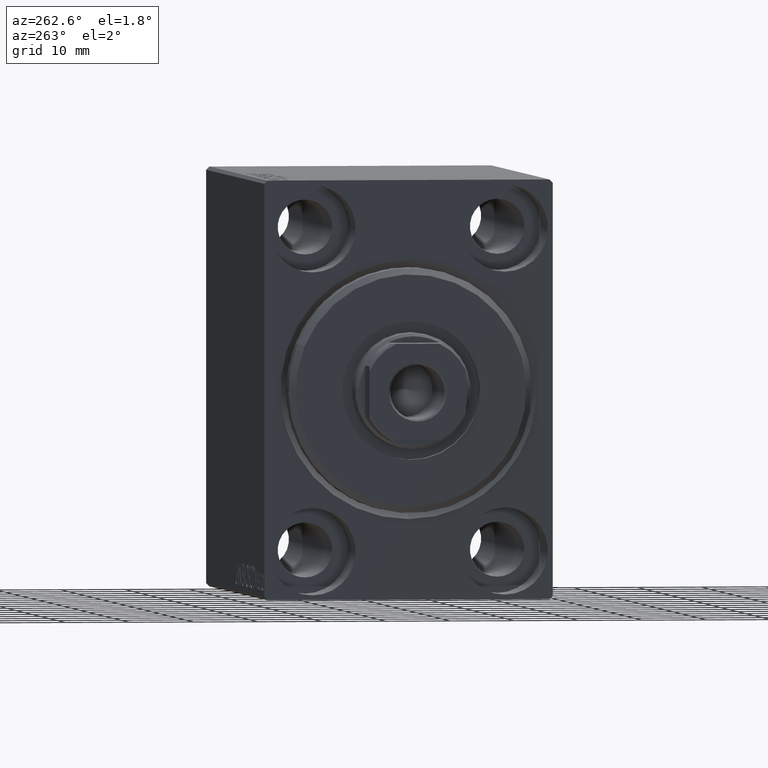
[diagram: clean part render]
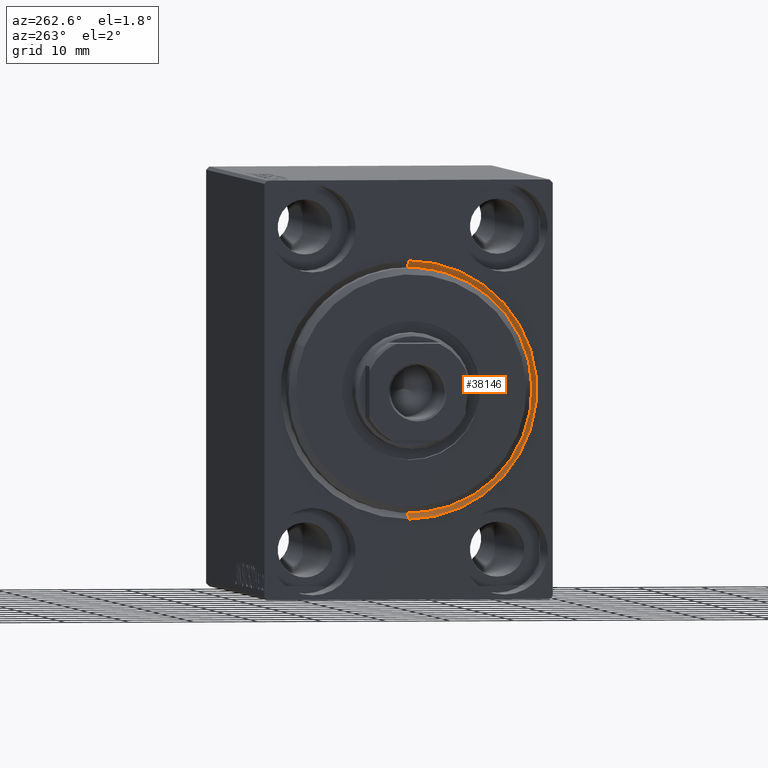
[diagram: same view with one face highlighted and labeled with its STEP entity id]
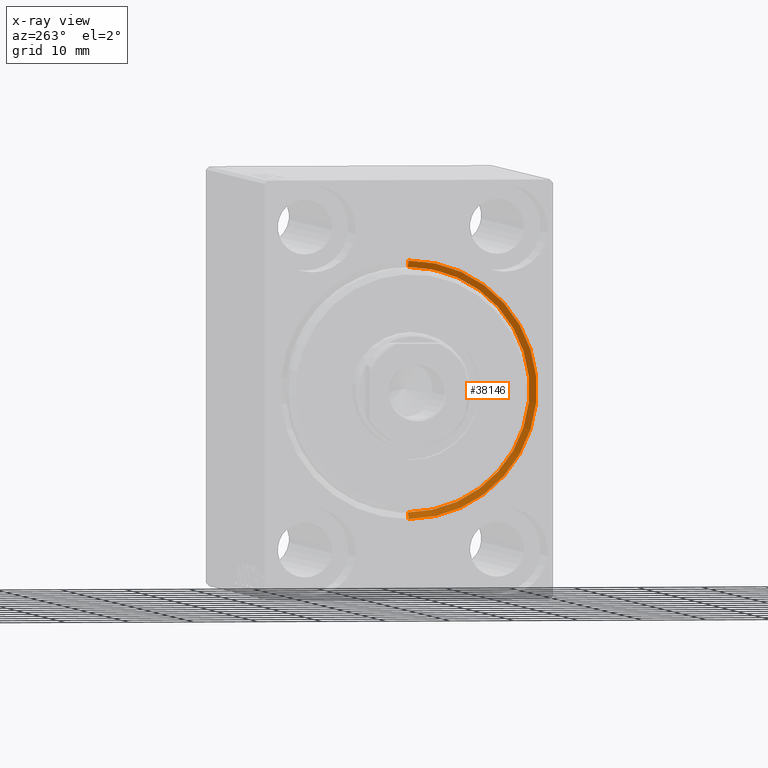
[diagram: x-ray of the same camera — body ghosted, the highlighted face saturated]
A machine part, auxiliary view. The second image highlights one B-rep face of the part: STEP entity #38146.
The next image is the same camera in x-ray: the body ghosted, the highlighted face saturated — about 0% of this face is hidden behind the body in this view.
In plain terms, the highlighted conical surface has half-angle 45 deg.
Its self-contained STEP definition (entity closure, byte-faithful):
#2397 = VERTEX_POINT ( 'NONE', #24559 ) ;
#2514 = DIRECTION ( 'NONE',  ( -1.000000000000000000, 0.000000000000000000, 0.000000000000000000 ) ) ;
#4711 = DIRECTION ( 'NONE',  ( -0.7071067811865463515, 8.659560562354948882E-17, -0.7071067811865487940 ) ) ;
#7815 = FACE_OUTER_BOUND ( 'NONE', #24274, .T. ) ;
#8257 = LINE ( 'NONE', #17626, #24390 ) ;
#8828 = VECTOR ( 'NONE', #16977, 1000.000000000000000 ) ;
#9353 = EDGE_CURVE ( 'NONE', #18108, #36918, #20848, .T. ) ;
#9601 = EDGE_CURVE ( 'NONE', #18108, #2397, #8257, .T. ) ;
#9966 = CONICAL_SURFACE ( 'NONE', #34858, 19.00000000000000000, 0.7853981633974500554 ) ;
#11143 = DIRECTION ( 'NONE',  ( 0.000000000000000000, 0.000000000000000000, 1.000000000000000000 ) ) ;
#12244 = CARTESIAN_POINT ( 'NONE',  ( 1.000000000000000888, 2.326828918379970970E-15, -19.00000000000000000 ) ) ;
#12760 = ORIENTED_EDGE ( 'NONE', *, *, #38604, .F. ) ;
#13888 = ORIENTED_EDGE ( 'NONE', *, *, #9601, .T. ) ;
#14497 = DIRECTION ( 'NONE',  ( -1.000000000000000000, 0.000000000000000000, 0.000000000000000000 ) ) ;
#16184 = DIRECTION ( 'NONE',  ( 1.000000000000000000, 0.000000000000000000, 0.000000000000000000 ) ) ;
#16977 = DIRECTION ( 'NONE',  ( -0.7071067811865463515, 0.000000000000000000, 0.7071067811865487940 ) ) ;
#17505 = EDGE_CURVE ( 'NONE', #36918, #25583, #29454, .T. ) ;
#17626 = CARTESIAN_POINT ( 'NONE',  ( 1.000000000000000888, 2.326828918379970970E-15, -19.00000000000000000 ) ) ;
#18108 = VERTEX_POINT ( 'NONE', #12244 ) ;
#20282 = CARTESIAN_POINT ( 'NONE',  ( 0.000000000000000000, 0.000000000000000000, 20.00000000000000355 ) ) ;
#20848 = CIRCLE ( 'NONE', #25814, 19.00000000000000000 ) ;
#22805 = ORIENTED_EDGE ( 'NONE', *, *, #9353, .F. ) ;
#24274 = EDGE_LOOP ( 'NONE', ( #22805, #13888, #12760, #36043 ) ) ;
#24390 = VECTOR ( 'NONE', #4711, 1000.000000000000000 ) ;
#24559 = CARTESIAN_POINT ( 'NONE',  ( 0.000000000000000000, 2.449293598294706907E-15, -20.00000000000000355 ) ) ;
#25583 = VERTEX_POINT ( 'NONE', #20282 ) ;
#25814 = AXIS2_PLACEMENT_3D ( 'NONE', #43213, #2514, #29649 ) ;
#26867 = CARTESIAN_POINT ( 'NONE',  ( 0.000000000000000000, 0.000000000000000000, 0.000000000000000000 ) ) ;
#27510 = CARTESIAN_POINT ( 'NONE',  ( 1.000000000000000888, 0.000000000000000000, 19.00000000000000000 ) ) ;
#29454 = LINE ( 'NONE', #39677, #8828 ) ;
#29649 = DIRECTION ( 'NONE',  ( 0.000000000000000000, 0.000000000000000000, -1.000000000000000000 ) ) ;
#33771 = DIRECTION ( 'NONE',  ( 0.000000000000000000, 0.000000000000000000, -1.000000000000000000 ) ) ;
#34279 = CIRCLE ( 'NONE', #37080, 20.00000000000000355 ) ;
#34858 = AXIS2_PLACEMENT_3D ( 'NONE', #38734, #14497, #11143 ) ;
#36043 = ORIENTED_EDGE ( 'NONE', *, *, #17505, .F. ) ;
#36918 = VERTEX_POINT ( 'NONE', #27510 ) ;
#37080 = AXIS2_PLACEMENT_3D ( 'NONE', #26867, #16184, #33771 ) ;
#38146 = ADVANCED_FACE ( 'NONE', ( #7815 ), #9966, .F. ) ;
#38604 = EDGE_CURVE ( 'NONE', #25583, #2397, #34279, .T. ) ;
#38734 = CARTESIAN_POINT ( 'NONE',  ( 1.000000000000000888, 0.000000000000000000, 0.000000000000000000 ) ) ;
#39677 = CARTESIAN_POINT ( 'NONE',  ( 1.000000000000000888, 0.000000000000000000, 19.00000000000000000 ) ) ;
#43213 = CARTESIAN_POINT ( 'NONE',  ( 1.000000000000000888, 0.000000000000000000, 0.000000000000000000 ) ) ;